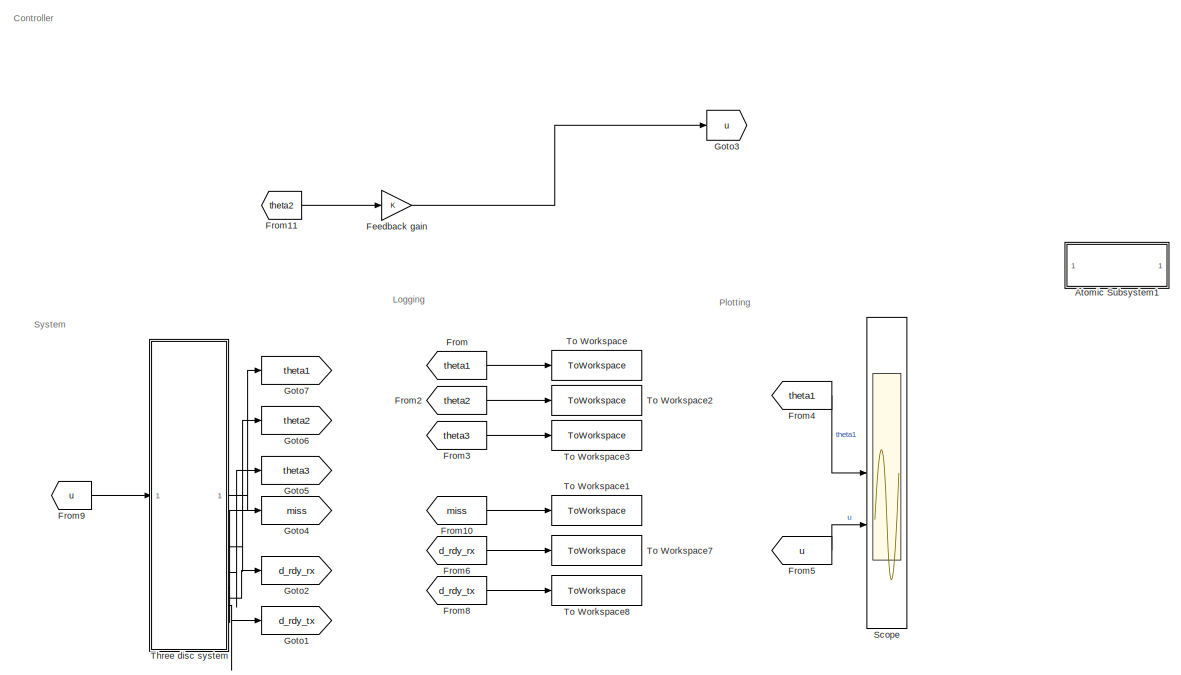
[diagram: root canvas - part 1/2, right side, full height]
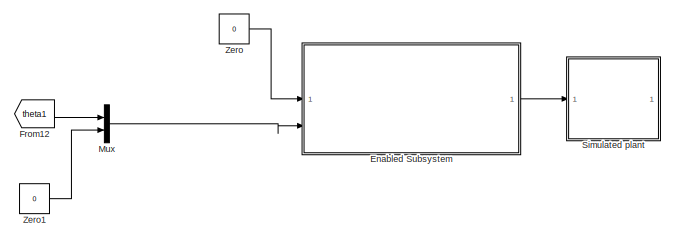
[diagram: root canvas - part 2/2, middle left region]
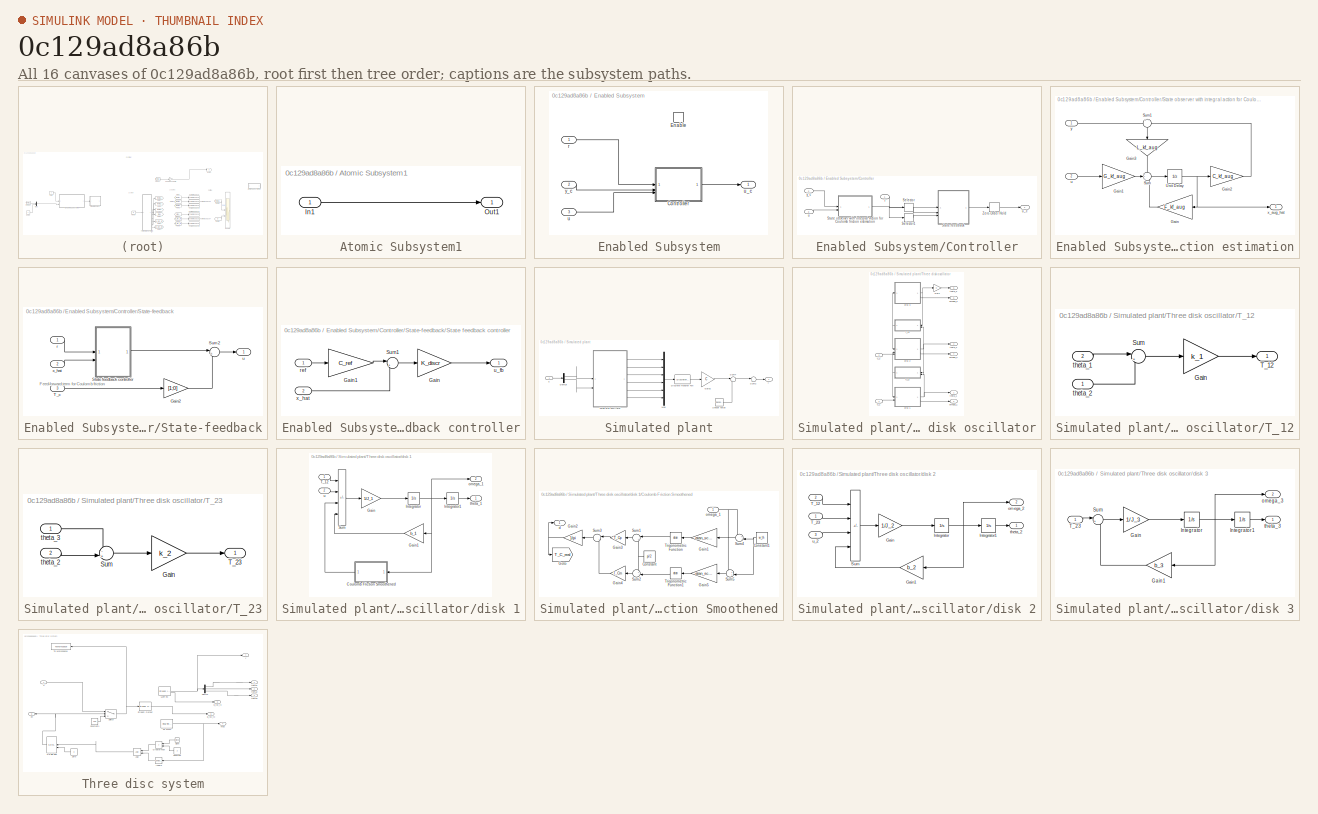
[diagram: thumbnail index - all 16 canvases of the model, root first then tree order]
MODEL slx_0c129ad8a86b
KIND model
CONFIG AbsTol = auto
CONFIG EnableMultiTasking = off
CONFIG FixedStep = 0.001
CONFIG MaxStep = auto
CONFIG MinStep = auto
CONFIG RelTol = 1e-3
CONFIG SampleTimeConstraint = Unconstrained
CONFIG SolverName = VariableStepAuto
CONFIG StartTime = 0.0
CONFIG StopTime = 5
BLOCK [SubSystem] Atomic Subsystem1
  TreatAsAtomicUnit = on
BLOCK [Inport] Atomic Subsystem1/In1
BLOCK [Outport] Atomic Subsystem1/Out1
BLOCK [SubSystem] Enabled Subsystem
  Commented = on
  TreatAsAtomicUnit = on
BLOCK [SubSystem] Enabled Subsystem/Controller
BLOCK [Selector] Enabled Subsystem/Controller/Selector
  IndexOptions = Index vector (dialog)
  Indices = [1:6]
  InputPortWidth = 7
  OutputSizes = 1
BLOCK [Selector] Enabled Subsystem/Controller/Selector1
  IndexOptions = Index vector (dialog)
  Indices = [7]
  InputPortWidth = 7
  OutputSizes = 1
BLOCK [SubSystem] Enabled Subsystem/Controller/State observer with integral action for Coulomb friction estimation
BLOCK [Gain] Enabled Subsystem/Controller/State observer with integral action for Coulomb friction estimation/Gain
  Gain = F_kf_aug
  Multiplication = Matrix(K*u) (u vector)
BLOCK [Gain] Enabled Subsystem/Controller/State observer with integral action for Coulomb friction estimation/Gain1
  Gain = G_kf_aug
  Multiplication = Matrix(K*u) (u vector)
BLOCK [Gain] Enabled Subsystem/Controller/State observer with integral action for Coulomb friction estimation/Gain2
  Gain = C_kf_aug
  Multiplication = Matrix(K*u) (u vector)
BLOCK [Gain] Enabled Subsystem/Controller/State observer with integral action for Coulomb friction estimation/Gain3
  Gain = L_kf_aug
  Multiplication = Matrix(K*u) (u vector)
  NameLocation = left
BLOCK [Sum] Enabled Subsystem/Controller/State observer with integral action for Coulomb friction estimation/Sum
  Inputs = +++
BLOCK [Sum] Enabled Subsystem/Controller/State observer with integral action for Coulomb friction estimation/Sum1
  Inputs = +-
  NameLocation = left
BLOCK [UnitDelay] Enabled Subsystem/Controller/State observer with integral action for Coulomb friction estimation/Unit Delay
  HasFrameUpgradeWarning = on
  SampleTime = T_s
BLOCK [Inport] Enabled Subsystem/Controller/State observer with integral action for Coulomb friction estimation/u
  Port = 2
BLOCK [Outport] Enabled Subsystem/Controller/State observer with integral action for Coulomb friction estimation/x_aug_hat
  VectorParamsAs1DForOutWhenUnconnected = off
BLOCK [Inport] Enabled Subsystem/Controller/State observer with integral action for Coulomb friction estimation/y
BLOCK [SubSystem] Enabled Subsystem/Controller/State-feedback
BLOCK [Gain] Enabled Subsystem/Controller/State-feedback/Gain2
  Gain = [1;0]
  NameLocation = top
BLOCK [SubSystem] Enabled Subsystem/Controller/State-feedback/State feedback controller
BLOCK [Gain] Enabled Subsystem/Controller/State-feedback/State feedback controller/Gain
  Gain = K_discr
  Multiplication = Matrix(K*u) (u vector)
  NameLocation = top
BLOCK [Gain] Enabled Subsystem/Controller/State-feedback/State feedback controller/Gain1
  Gain = C_ref
  Multiplication = Matrix(K*u) (u vector)
BLOCK [Sum] Enabled Subsystem/Controller/State-feedback/State feedback controller/Sum1
  Inputs = |+-
BLOCK [Inport] Enabled Subsystem/Controller/State-feedback/State feedback controller/ref
BLOCK [Outport] Enabled Subsystem/Controller/State-feedback/State feedback controller/u_fb
BLOCK [Inport] Enabled Subsystem/Controller/State-feedback/State feedback controller/x_hat
  Port = 2
BLOCK [Sum] Enabled Subsystem/Controller/State-feedback/Sum2
  Inputs = |+-
BLOCK [Inport] Enabled Subsystem/Controller/State-feedback/T_c
  Port = 3
BLOCK [Inport] Enabled Subsystem/Controller/State-feedback/r
BLOCK [Outport] Enabled Subsystem/Controller/State-feedback/u
  VectorParamsAs1DForOutWhenUnconnected = off
BLOCK [Inport] Enabled Subsystem/Controller/State-feedback/x_hat
  Port = 2
BLOCK [ZeroOrderHold] Enabled Subsystem/Controller/Zero-Order Hold
  SampleTime = T_s
BLOCK [Inport] Enabled Subsystem/Controller/r
BLOCK [Inport] Enabled Subsystem/Controller/u
  Port = 3
BLOCK [Outport] Enabled Subsystem/Controller/u_c
BLOCK [Inport] Enabled Subsystem/Controller/y_c
  Port = 2
BLOCK [EnablePort] Enabled Subsystem/Enable
BLOCK [Inport] Enabled Subsystem/r
BLOCK [Inport] Enabled Subsystem/u
  Port = 3
BLOCK [Outport] Enabled Subsystem/u_c
BLOCK [Inport] Enabled Subsystem/y_c
  Port = 2
BLOCK [Gain] Feedback gain
BLOCK [From] From
  GotoTag = theta1
BLOCK [From] From10
  GotoTag = miss
BLOCK [From] From11
  GotoTag = theta2
BLOCK [From] From12
  Commented = on
  GotoTag = theta1
BLOCK [From] From2
  GotoTag = theta2
BLOCK [From] From3
  GotoTag = theta3
BLOCK [From] From4
  GotoTag = theta1
BLOCK [From] From5
  GotoTag = u
BLOCK [From] From6
  GotoTag = d_rdy_rx
BLOCK [From] From8
  GotoTag = d_rdy_tx
BLOCK [From] From9
  GotoTag = u
BLOCK [Goto] Goto1
  GotoTag = d_rdy_tx
BLOCK [Goto] Goto2
  GotoTag = d_rdy_rx
BLOCK [Goto] Goto3
  GotoTag = u
BLOCK [Goto] Goto4
  GotoTag = miss
BLOCK [Goto] Goto5
  GotoTag = theta3
BLOCK [Goto] Goto6
  GotoTag = theta2
BLOCK [Goto] Goto7
  GotoTag = theta1
BLOCK [Mux] Mux
  Commented = on
  DisplayOption = bar
  Inputs = 2
BLOCK [Scope] Scope
  Commented = on
  Floating = off
  NumInputPorts = 2
  ScopeSpecificationString = Simulink.scopes.TimeScopeBlockCfg('CurrentConfiguration', extmgr.ConfigurationSet(extmgr.Configuration('Core','General UI',true),extmgr.Configuration('Core','Source UI',true),extmgr.Configuration('Sources','WiredSimulink',true,'SampleTime','0.04'),extmgr.Configuration('Visuals','Time Domain',true,'SerializedDisplays',{struct('MinYLimReal','2716.24453','MaxYLimReal','3335.70264','YLabelReal','','Mi...<+1499ch>
BLOCK [SubSystem] Simulated plant
  Commented = on
BLOCK [Demux] Simulated plant/Demux
  Outputs = 2
BLOCK [DiscreteTransferFcn] Simulated plant/Discrete Transfer Fcn
  Denominator = [1]
  InputPortMap = u0
  SampleTime = T_s
BLOCK [Gain] Simulated plant/Gain2
  Gain = C
  Multiplication = Matrix(K*u) (u vector)
BLOCK [Mux] Simulated plant/Mux
  DisplayOption = bar
  Inputs = 6
BLOCK [RandomNumber] Simulated plant/Sensor noise
  Mean = zeros(3,1)
  SampleTime = T_s
  Variance = diag(sigma_meas^2)
BLOCK [Sum] Simulated plant/Sum2
  Inputs = |++
BLOCK [Sum] Simulated plant/Sum4
  Inputs = |++
BLOCK [SubSystem] Simulated plant/Three disk oscillator
BLOCK [Gain] Simulated plant/Three disk oscillator/Gain
BLOCK [SubSystem] Simulated plant/Three disk oscillator/T_12
BLOCK [Gain] Simulated plant/Three disk oscillator/T_12/Gain
  Gain = k_1
BLOCK [Sum] Simulated plant/Three disk oscillator/T_12/Sum
  Inputs = |+-
BLOCK [Outport] Simulated plant/Three disk oscillator/T_12/T_12
  VectorParamsAs1DForOutWhenUnconnected = off
BLOCK [Inport] Simulated plant/Three disk oscillator/T_12/theta_1
  Port = 2
BLOCK [Inport] Simulated plant/Three disk oscillator/T_12/theta_2
BLOCK [SubSystem] Simulated plant/Three disk oscillator/T_23
BLOCK [Gain] Simulated plant/Three disk oscillator/T_23/Gain
  Gain = k_2
BLOCK [Sum] Simulated plant/Three disk oscillator/T_23/Sum
  Inputs = -+|
BLOCK [Outport] Simulated plant/Three disk oscillator/T_23/T_23
  VectorParamsAs1DForOutWhenUnconnected = off
BLOCK [Inport] Simulated plant/Three disk oscillator/T_23/theta_2
  Port = 2
BLOCK [Inport] Simulated plant/Three disk oscillator/T_23/theta_3
BLOCK [SubSystem] Simulated plant/Three disk oscillator/disk 1
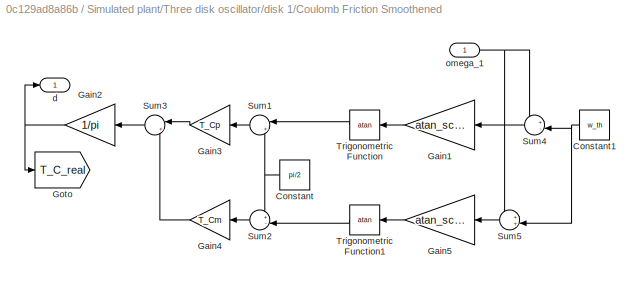
BLOCK [SubSystem] Simulated plant/Three disk oscillator/disk 1/Coulomb Friction Smoothened
BLOCK [Constant] Simulated plant/Three disk oscillator/disk 1/Coulomb Friction Smoothened/Constant
  Value = pi/2
BLOCK [Constant] Simulated plant/Three disk oscillator/disk 1/Coulomb Friction Smoothened/Constant1
  Value = w_th
BLOCK [Gain] Simulated plant/Three disk oscillator/disk 1/Coulomb Friction Smoothened/Gain1
  Gain = atan_scale
BLOCK [Gain] Simulated plant/Three disk oscillator/disk 1/Coulomb Friction Smoothened/Gain2
  Gain = 1/pi
BLOCK [Gain] Simulated plant/Three disk oscillator/disk 1/Coulomb Friction Smoothened/Gain3
  Gain = T_Cp
BLOCK [Gain] Simulated plant/Three disk oscillator/disk 1/Coulomb Friction Smoothened/Gain4
  Gain = T_Cm
BLOCK [Gain] Simulated plant/Three disk oscillator/disk 1/Coulomb Friction Smoothened/Gain5
  Gain = atan_scale
BLOCK [Goto] Simulated plant/Three disk oscillator/disk 1/Coulomb Friction Smoothened/Goto
  GotoTag = T_C_real
  TagVisibility = global
BLOCK [Sum] Simulated plant/Three disk oscillator/disk 1/Coulomb Friction Smoothened/Sum1
  Inputs = |++
BLOCK [Sum] Simulated plant/Three disk oscillator/disk 1/Coulomb Friction Smoothened/Sum2
  Inputs = +-|
BLOCK [Sum] Simulated plant/Three disk oscillator/disk 1/Coulomb Friction Smoothened/Sum3
  Inputs = |+-
BLOCK [Sum] Simulated plant/Three disk oscillator/disk 1/Coulomb Friction Smoothened/Sum4
  Inputs = +-|
BLOCK [Sum] Simulated plant/Three disk oscillator/disk 1/Coulomb Friction Smoothened/Sum5
  Inputs = ++|
BLOCK [Trigonometry] Simulated plant/Three disk oscillator/disk 1/Coulomb Friction Smoothened/Trigonometric Function
  Operator = atan
BLOCK [Trigonometry] Simulated plant/Three disk oscillator/disk 1/Coulomb Friction Smoothened/Trigonometric Function1
  Operator = atan
BLOCK [Outport] Simulated plant/Three disk oscillator/disk 1/Coulomb Friction Smoothened/d
  VectorParamsAs1DForOutWhenUnconnected = off
BLOCK [Inport] Simulated plant/Three disk oscillator/disk 1/Coulomb Friction Smoothened/omega_1
BLOCK [Gain] Simulated plant/Three disk oscillator/disk 1/Gain
  Gain = 1/J_1
BLOCK [Gain] Simulated plant/Three disk oscillator/disk 1/Gain1
  Gain = b_1
BLOCK [Integrator] Simulated plant/Three disk oscillator/disk 1/Integrator
  InitialCondition = x_0(2)
BLOCK [Integrator] Simulated plant/Three disk oscillator/disk 1/Integrator1
  InitialCondition = x_0(1)
BLOCK [Sum] Simulated plant/Three disk oscillator/disk 1/Sum
  IconShape = rectangular
  Inputs = -+--
BLOCK [Inport] Simulated plant/Three disk oscillator/disk 1/T_12
BLOCK [Outport] Simulated plant/Three disk oscillator/disk 1/omega_1
  Port = 2
  VectorParamsAs1DForOutWhenUnconnected = off
BLOCK [Outport] Simulated plant/Three disk oscillator/disk 1/theta_1
  VectorParamsAs1DForOutWhenUnconnected = off
BLOCK [Inport] Simulated plant/Three disk oscillator/disk 1/u
  Port = 2
BLOCK [SubSystem] Simulated plant/Three disk oscillator/disk 2
BLOCK [Gain] Simulated plant/Three disk oscillator/disk 2/Gain
  Gain = 1/J_2
BLOCK [Gain] Simulated plant/Three disk oscillator/disk 2/Gain1
  Gain = b_2
BLOCK [Integrator] Simulated plant/Three disk oscillator/disk 2/Integrator
  InitialCondition = x_0(4)
BLOCK [Integrator] Simulated plant/Three disk oscillator/disk 2/Integrator1
  InitialCondition = x_0(3)
BLOCK [Sum] Simulated plant/Three disk oscillator/disk 2/Sum
  IconShape = rectangular
  Inputs = +-+-
BLOCK [Inport] Simulated plant/Three disk oscillator/disk 2/T_12
  Port = 2
BLOCK [Inport] Simulated plant/Three disk oscillator/disk 2/T_23
BLOCK [Outport] Simulated plant/Three disk oscillator/disk 2/omega_2
  Port = 2
  VectorParamsAs1DForOutWhenUnconnected = off
BLOCK [Outport] Simulated plant/Three disk oscillator/disk 2/theta_2
  VectorParamsAs1DForOutWhenUnconnected = off
BLOCK [Inport] Simulated plant/Three disk oscillator/disk 2/u_2
  Port = 3
BLOCK [SubSystem] Simulated plant/Three disk oscillator/disk 3
BLOCK [Gain] Simulated plant/Three disk oscillator/disk 3/Gain
  Gain = 1/J_3
BLOCK [Gain] Simulated plant/Three disk oscillator/disk 3/Gain1
  Gain = b_3
BLOCK [Integrator] Simulated plant/Three disk oscillator/disk 3/Integrator
  InitialCondition = x_0(6)
BLOCK [Integrator] Simulated plant/Three disk oscillator/disk 3/Integrator1
  InitialCondition = x_0(5)
BLOCK [Sum] Simulated plant/Three disk oscillator/disk 3/Sum
  Inputs = |+-
BLOCK [Inport] Simulated plant/Three disk oscillator/disk 3/T_23
BLOCK [Outport] Simulated plant/Three disk oscillator/disk 3/omega_3
  Port = 2
  VectorParamsAs1DForOutWhenUnconnected = off
BLOCK [Outport] Simulated plant/Three disk oscillator/disk 3/theta_3
  VectorParamsAs1DForOutWhenUnconnected = off
BLOCK [Outport] Simulated plant/Three disk oscillator/omega_1
  Port = 2
  VectorParamsAs1DForOutWhenUnconnected = off
BLOCK [Outport] Simulated plant/Three disk oscillator/omega_2
  Port = 4
  VectorParamsAs1DForOutWhenUnconnected = off
BLOCK [Outport] Simulated plant/Three disk oscillator/omega_3
  Port = 6
  VectorParamsAs1DForOutWhenUnconnected = off
BLOCK [Outport] Simulated plant/Three disk oscillator/theta_1
  VectorParamsAs1DForOutWhenUnconnected = off
BLOCK [Outport] Simulated plant/Three disk oscillator/theta_2
  Port = 3
  VectorParamsAs1DForOutWhenUnconnected = off
BLOCK [Outport] Simulated plant/Three disk oscillator/theta_3
  Port = 5
  VectorParamsAs1DForOutWhenUnconnected = off
BLOCK [Inport] Simulated plant/Three disk oscillator/u_1
BLOCK [Inport] Simulated plant/Three disk oscillator/u_2
  Port = 2
BLOCK [Inport] Simulated plant/u
BLOCK [Outport] Simulated plant/y
  VectorParamsAs1DForOutWhenUnconnected = off
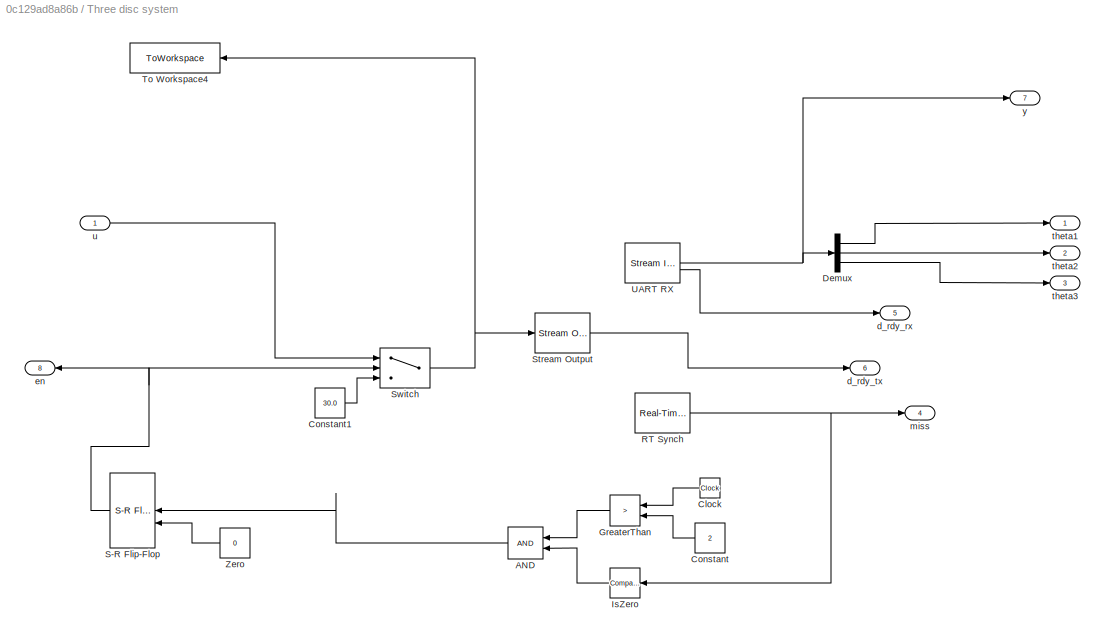
BLOCK [SubSystem] Three disc system
BLOCK [Logic] Three disc system/AND
  AllPortsSameDT = off
  IconShape = distinctive
  NameLocation = top
  OutDataTypeStr = boolean
BLOCK [Clock] Three disc system/Clock
  NameLocation = top
BLOCK [Constant] Three disc system/Constant
  NameLocation = top
  Value = 2
BLOCK [Constant] Three disc system/Constant1
  OutDataTypeStr = single
  Value = 30.0
BLOCK [Demux] Three disc system/Demux
  Outputs = 3
BLOCK [RelationalOperator] Three disc system/GreaterThan
  InputSameDT = off
  NameLocation = top
  Operator = >
  OutDataTypeStr = boolean
  RndMeth = Simplest
BLOCK [Reference] Three disc system/IsZero  REF=simulink/Logic and Bit
Operations/Compare
To Zero
  LibrarySourceBlock = simulink/Quick Insert/Logic and Bit\nOperations/IsZero
  NameLocation = top
  SourceBlock = simulink/Logic and Bit\nOperations/Compare\nTo Zero
  SourceType = Compare To Zero
BLOCK [Reference] Three disc system/RT Synch  REF=sldrtlib/Real-Time
Synchronization
  SourceBlock = sldrtlib/Real-Time\nSynchronization
  SourceType = Simulink Desktop Real-Time Synchronization
BLOCK [Reference] Three disc system/S-R Flip-Flop  REF=simulink_extras/Flip Flops/S-R
Flip-Flop
  NameLocation = top
  SourceBlock = simulink_extras/Flip Flops/S-R\nFlip-Flop
  SourceType = SRFlipFlop
BLOCK [Reference] Three disc system/Stream Output  REF=sldrtlib/Stream Output
  AttributesFormatString = Serial Port [8]
  SourceBlock = sldrtlib/Stream Output
  SourceType = Simulink Desktop Real-Time Stream Output
BLOCK [Switch] Three disc system/Switch
  Criteria = u2 > Threshold
  InputSameDT = off
  SaturateOnIntegerOverflow = off
BLOCK [ToWorkspace] Three disc system/To Workspace4
  FixptAsFi = on
  MaxDataPoints = inf
  NameLocation = top
  SampleTime = 1e-3
  VariableName = u_tx
BLOCK [Reference] Three disc system/UART RX  REF=sldrtlib/Stream Input
  AttributesFormatString = Serial Port [8]
  SourceBlock = sldrtlib/Stream Input
  SourceType = Simulink Desktop Real-Time Stream Input
BLOCK [Constant] Three disc system/Zero
  NameLocation = top
  OutDataTypeStr = Inherit: Inherit via back propagation
  Value = 0
BLOCK [Outport] Three disc system/d_rdy_rx
  Port = 5
BLOCK [Outport] Three disc system/d_rdy_tx
  Port = 6
BLOCK [Outport] Three disc system/en
  NameLocation = top
  Port = 8
BLOCK [Outport] Three disc system/miss
  Port = 4
BLOCK [Outport] Three disc system/theta1
BLOCK [Outport] Three disc system/theta2
  Port = 2
BLOCK [Outport] Three disc system/theta3
  Port = 3
BLOCK [Inport] Three disc system/u
BLOCK [Outport] Three disc system/y
  Port = 7
BLOCK [ToWorkspace] To Workspace
  FixptAsFi = on
  MaxDataPoints = inf
  SampleTime = 0.001
  VariableName = theta1
BLOCK [ToWorkspace] To Workspace1
  FixptAsFi = on
  MaxDataPoints = inf
  SampleTime = 0.001
  VariableName = miss
BLOCK [ToWorkspace] To Workspace2
  FixptAsFi = on
  MaxDataPoints = inf
  SampleTime = 0.001
  VariableName = theta2
BLOCK [ToWorkspace] To Workspace3
  FixptAsFi = on
  MaxDataPoints = inf
  SampleTime = 0.001
  VariableName = theta3
BLOCK [ToWorkspace] To Workspace7
  FixptAsFi = on
  MaxDataPoints = inf
  SampleTime = 0.001
  VariableName = d_rdy_rx
BLOCK [ToWorkspace] To Workspace8
  FixptAsFi = on
  MaxDataPoints = inf
  SampleTime = 0.001
  VariableName = d_rdy_tx
BLOCK [Constant] Zero
  Commented = on
  OutDataTypeStr = Inherit: Inherit via back propagation
  Value = 0
BLOCK [Constant] Zero1
  Commented = on
  OutDataTypeStr = Inherit: Inherit via back propagation
  Value = 0
ANNOTATION (root): Controller
ANNOTATION (root): Logging
ANNOTATION (root): Plotting
ANNOTATION (root): System
ANNOTATION Enabled Subsystem/Controller/State-feedback: Feed-forward term for Coulomb friction
LINE Atomic Subsystem1/In1:1 -> Atomic Subsystem1/Out1:1
LINE Enabled Subsystem/Controller/Selector1:1 -> Enabled Subsystem/Controller/State-feedback:3
LINE Enabled Subsystem/Controller/Selector:1 -> Enabled Subsystem/Controller/State-feedback:2
LINE Enabled Subsystem/Controller/State observer with integral action for Coulomb friction estimation/Gain1:1 -> Enabled Subsystem/Controller/State observer with integral action for Coulomb friction estimation/Sum:2
LINE Enabled Subsystem/Controller/State observer with integral action for Coulomb friction estimation/Gain2:1 -> Enabled Subsystem/Controller/State observer with integral action for Coulomb friction estimation/Sum1:2
LINE Enabled Subsystem/Controller/State observer with integral action for Coulomb friction estimation/Gain3:1 -> Enabled Subsystem/Controller/State observer with integral action for Coulomb friction estimation/Sum:1
LINE Enabled Subsystem/Controller/State observer with integral action for Coulomb friction estimation/Gain:1 -> Enabled Subsystem/Controller/State observer with integral action for Coulomb friction estimation/Sum:3
LINE Enabled Subsystem/Controller/State observer with integral action for Coulomb friction estimation/Sum1:1 -> Enabled Subsystem/Controller/State observer with integral action for Coulomb friction estimation/Gain3:1
LINE Enabled Subsystem/Controller/State observer with integral action for Coulomb friction estimation/Sum:1 -> Enabled Subsystem/Controller/State observer with integral action for Coulomb friction estimation/Unit Delay:1
NET Enabled Subsystem/Controller/State observer with integral action for Coulomb friction estimation/Unit Delay:1 -> Enabled Subsystem/Controller/State observer with integral action for Coulomb friction estimation/Gain2:1, Enabled Subsystem/Controller/State observer with integral action for Coulomb friction estimation/Gain:1, Enabled Subsystem/Controller/State observer with integral action for Coulomb friction estimation/x_aug_hat:1
LINE Enabled Subsystem/Controller/State observer with integral action for Coulomb friction estimation/u:1 -> Enabled Subsystem/Controller/State observer with integral action for Coulomb friction estimation/Gain1:1
LINE Enabled Subsystem/Controller/State observer with integral action for Coulomb friction estimation/y:1 -> Enabled Subsystem/Controller/State observer with integral action for Coulomb friction estimation/Sum1:1
NET Enabled Subsystem/Controller/State observer with integral action for Coulomb friction estimation:1 -> Enabled Subsystem/Controller/Selector1:1, Enabled Subsystem/Controller/Selector:1
LINE Enabled Subsystem/Controller/State-feedback/Gain2:1 -> Enabled Subsystem/Controller/State-feedback/Sum2:2
LINE Enabled Subsystem/Controller/State-feedback/State feedback controller/Gain1:1 -> Enabled Subsystem/Controller/State-feedback/State feedback controller/Sum1:1
LINE Enabled Subsystem/Controller/State-feedback/State feedback controller/Gain:1 -> Enabled Subsystem/Controller/State-feedback/State feedback controller/u_fb:1
LINE Enabled Subsystem/Controller/State-feedback/State feedback controller/Sum1:1 -> Enabled Subsystem/Controller/State-feedback/State feedback controller/Gain:1
LINE Enabled Subsystem/Controller/State-feedback/State feedback controller/ref:1 -> Enabled Subsystem/Controller/State-feedback/State feedback controller/Gain1:1
LINE Enabled Subsystem/Controller/State-feedback/State feedback controller/x_hat:1 -> Enabled Subsystem/Controller/State-feedback/State feedback controller/Sum1:2
LINE Enabled Subsystem/Controller/State-feedback/State feedback controller:1 -> Enabled Subsystem/Controller/State-feedback/Sum2:1
LINE Enabled Subsystem/Controller/State-feedback/Sum2:1 -> Enabled Subsystem/Controller/State-feedback/u:1
LINE Enabled Subsystem/Controller/State-feedback/T_c:1 -> Enabled Subsystem/Controller/State-feedback/Gain2:1
LINE Enabled Subsystem/Controller/State-feedback/r:1 -> Enabled Subsystem/Controller/State-feedback/State feedback controller:1
LINE Enabled Subsystem/Controller/State-feedback/x_hat:1 -> Enabled Subsystem/Controller/State-feedback/State feedback controller:2
LINE Enabled Subsystem/Controller/State-feedback:1 -> Enabled Subsystem/Controller/Zero-Order Hold:1
LINE Enabled Subsystem/Controller/Zero-Order Hold:1 -> Enabled Subsystem/Controller/u_c:1
LINE Enabled Subsystem/Controller/r:1 -> Enabled Subsystem/Controller/State-feedback:1
LINE Enabled Subsystem/Controller/u:1 -> Enabled Subsystem/Controller/State observer with integral action for Coulomb friction estimation:2
LINE Enabled Subsystem/Controller/y_c:1 -> Enabled Subsystem/Controller/State observer with integral action for Coulomb friction estimation:1
LINE Enabled Subsystem/Controller:1 -> Enabled Subsystem/u_c:1
LINE Enabled Subsystem/r:1 -> Enabled Subsystem/Controller:1
LINE Enabled Subsystem/u:1 -> Enabled Subsystem/Controller:3
LINE Enabled Subsystem/y_c:1 -> Enabled Subsystem/Controller:2
LINE Enabled Subsystem:1 -> Simulated plant:1
LINE Feedback gain:1 -> Goto3:1
LINE From10:1 -> To Workspace1:1
LINE From11:1 -> Feedback gain:1
LINE From12:1 -> Mux:1
LINE From2:1 -> To Workspace2:1
LINE From3:1 -> To Workspace3:1
LINE From4:1 -> Scope:1
LINE From5:1 -> Scope:2
LINE From6:1 -> To Workspace7:1
LINE From8:1 -> To Workspace8:1
LINE From9:1 -> Three disc system:1
LINE From:1 -> To Workspace:1
LINE Mux:1 -> Enabled Subsystem:3
LINE Simulated plant/Demux:1 -> Simulated plant/Three disk oscillator:1
LINE Simulated plant/Demux:2 -> Simulated plant/Three disk oscillator:2
LINE Simulated plant/Discrete Transfer Fcn:1 -> Simulated plant/Gain2:1
LINE Simulated plant/Gain2:1 -> Simulated plant/Sum4:1
LINE Simulated plant/Mux:1 -> Simulated plant/Discrete Transfer Fcn:1
LINE Simulated plant/Sensor noise:1 -> Simulated plant/Sum4:2
LINE Simulated plant/Sum2:1 -> Simulated plant/y:1
LINE Simulated plant/Sum4:1 -> Simulated plant/Sum2:1
LINE Simulated plant/Three disk oscillator/Gain:1 -> Simulated plant/Three disk oscillator/theta_3:1
LINE Simulated plant/Three disk oscillator/T_12/Gain:1 -> Simulated plant/Three disk oscillator/T_12/T_12:1
LINE Simulated plant/Three disk oscillator/T_12/Sum:1 -> Simulated plant/Three disk oscillator/T_12/Gain:1
LINE Simulated plant/Three disk oscillator/T_12/theta_1:1 -> Simulated plant/Three disk oscillator/T_12/Sum:1
LINE Simulated plant/Three disk oscillator/T_12/theta_2:1 -> Simulated plant/Three disk oscillator/T_12/Sum:2
NET Simulated plant/Three disk oscillator/T_12:1 -> Simulated plant/Three disk oscillator/disk 1:1, Simulated plant/Three disk oscillator/disk 2:2
LINE Simulated plant/Three disk oscillator/T_23/Gain:1 -> Simulated plant/Three disk oscillator/T_23/T_23:1
LINE Simulated plant/Three disk oscillator/T_23/Sum:1 -> Simulated plant/Three disk oscillator/T_23/Gain:1
LINE Simulated plant/Three disk oscillator/T_23/theta_2:1 -> Simulated plant/Three disk oscillator/T_23/Sum:2
LINE Simulated plant/Three disk oscillator/T_23/theta_3:1 -> Simulated plant/Three disk oscillator/T_23/Sum:1
NET Simulated plant/Three disk oscillator/T_23:1 -> Simulated plant/Three disk oscillator/disk 2:1, Simulated plant/Three disk oscillator/disk 3:1
NET Simulated plant/Three disk oscillator/disk 1/Coulomb Friction Smoothened/Constant1:1 -> Simulated plant/Three disk oscillator/disk 1/Coulomb Friction Smoothened/Sum4:2, Simulated plant/Three disk oscillator/disk 1/Coulomb Friction Smoothened/Sum5:2
NET Simulated plant/Three disk oscillator/disk 1/Coulomb Friction Smoothened/Constant:1 -> Simulated plant/Three disk oscillator/disk 1/Coulomb Friction Smoothened/Sum1:2, Simulated plant/Three disk oscillator/disk 1/Coulomb Friction Smoothened/Sum2:1
LINE Simulated plant/Three disk oscillator/disk 1/Coulomb Friction Smoothened/Gain1:1 -> Simulated plant/Three disk oscillator/disk 1/Coulomb Friction Smoothened/Trigonometric Function:1
NET Simulated plant/Three disk oscillator/disk 1/Coulomb Friction Smoothened/Gain2:1 -> Simulated plant/Three disk oscillator/disk 1/Coulomb Friction Smoothened/Goto:1, Simulated plant/Three disk oscillator/disk 1/Coulomb Friction Smoothened/d:1
LINE Simulated plant/Three disk oscillator/disk 1/Coulomb Friction Smoothened/Gain3:1 -> Simulated plant/Three disk oscillator/disk 1/Coulomb Friction Smoothened/Sum3:1
LINE Simulated plant/Three disk oscillator/disk 1/Coulomb Friction Smoothened/Gain4:1 -> Simulated plant/Three disk oscillator/disk 1/Coulomb Friction Smoothened/Sum3:2
LINE Simulated plant/Three disk oscillator/disk 1/Coulomb Friction Smoothened/Gain5:1 -> Simulated plant/Three disk oscillator/disk 1/Coulomb Friction Smoothened/Trigonometric Function1:1
LINE Simulated plant/Three disk oscillator/disk 1/Coulomb Friction Smoothened/Sum1:1 -> Simulated plant/Three disk oscillator/disk 1/Coulomb Friction Smoothened/Gain3:1
LINE Simulated plant/Three disk oscillator/disk 1/Coulomb Friction Smoothened/Sum2:1 -> Simulated plant/Three disk oscillator/disk 1/Coulomb Friction Smoothened/Gain4:1
LINE Simulated plant/Three disk oscillator/disk 1/Coulomb Friction Smoothened/Sum3:1 -> Simulated plant/Three disk oscillator/disk 1/Coulomb Friction Smoothened/Gain2:1
LINE Simulated plant/Three disk oscillator/disk 1/Coulomb Friction Smoothened/Sum4:1 -> Simulated plant/Three disk oscillator/disk 1/Coulomb Friction Smoothened/Gain1:1
LINE Simulated plant/Three disk oscillator/disk 1/Coulomb Friction Smoothened/Sum5:1 -> Simulated plant/Three disk oscillator/disk 1/Coulomb Friction Smoothened/Gain5:1
LINE Simulated plant/Three disk oscillator/disk 1/Coulomb Friction Smoothened/Trigonometric Function1:1 -> Simulated plant/Three disk oscillator/disk 1/Coulomb Friction Smoothened/Sum2:2
LINE Simulated plant/Three disk oscillator/disk 1/Coulomb Friction Smoothened/Trigonometric Function:1 -> Simulated plant/Three disk oscillator/disk 1/Coulomb Friction Smoothened/Sum1:1
NET Simulated plant/Three disk oscillator/disk 1/Coulomb Friction Smoothened/omega_1:1 -> Simulated plant/Three disk oscillator/disk 1/Coulomb Friction Smoothened/Sum4:1, Simulated plant/Three disk oscillator/disk 1/Coulomb Friction Smoothened/Sum5:1
LINE Simulated plant/Three disk oscillator/disk 1/Coulomb Friction Smoothened:1 -> Simulated plant/Three disk oscillator/disk 1/Sum:3
LINE Simulated plant/Three disk oscillator/disk 1/Gain1:1 -> Simulated plant/Three disk oscillator/disk 1/Sum:4
LINE Simulated plant/Three disk oscillator/disk 1/Gain:1 -> Simulated plant/Three disk oscillator/disk 1/Integrator:1
LINE Simulated plant/Three disk oscillator/disk 1/Integrator1:1 -> Simulated plant/Three disk oscillator/disk 1/theta_1:1
NET Simulated plant/Three disk oscillator/disk 1/Integrator:1 -> Simulated plant/Three disk oscillator/disk 1/Coulomb Friction Smoothened:1, Simulated plant/Three disk oscillator/disk 1/Gain1:1, Simulated plant/Three disk oscillator/disk 1/Integrator1:1, Simulated plant/Three disk oscillator/disk 1/omega_1:1
LINE Simulated plant/Three disk oscillator/disk 1/Sum:1 -> Simulated plant/Three disk oscillator/disk 1/Gain:1
LINE Simulated plant/Three disk oscillator/disk 1/T_12:1 -> Simulated plant/Three disk oscillator/disk 1/Sum:1
LINE Simulated plant/Three disk oscillator/disk 1/u:1 -> Simulated plant/Three disk oscillator/disk 1/Sum:2
NET Simulated plant/Three disk oscillator/disk 1:1 -> Simulated plant/Three disk oscillator/T_12:2, Simulated plant/Three disk oscillator/theta_1:1
LINE Simulated plant/Three disk oscillator/disk 1:2 -> Simulated plant/Three disk oscillator/omega_1:1
LINE Simulated plant/Three disk oscillator/disk 2/Gain1:1 -> Simulated plant/Three disk oscillator/disk 2/Sum:4
LINE Simulated plant/Three disk oscillator/disk 2/Gain:1 -> Simulated plant/Three disk oscillator/disk 2/Integrator:1
LINE Simulated plant/Three disk oscillator/disk 2/Integrator1:1 -> Simulated plant/Three disk oscillator/disk 2/theta_2:1
NET Simulated plant/Three disk oscillator/disk 2/Integrator:1 -> Simulated plant/Three disk oscillator/disk 2/Gain1:1, Simulated plant/Three disk oscillator/disk 2/Integrator1:1, Simulated plant/Three disk oscillator/disk 2/omega_2:1
LINE Simulated plant/Three disk oscillator/disk 2/Sum:1 -> Simulated plant/Three disk oscillator/disk 2/Gain:1
LINE Simulated plant/Three disk oscillator/disk 2/T_12:1 -> Simulated plant/Three disk oscillator/disk 2/Sum:1
LINE Simulated plant/Three disk oscillator/disk 2/T_23:1 -> Simulated plant/Three disk oscillator/disk 2/Sum:2
LINE Simulated plant/Three disk oscillator/disk 2/u_2:1 -> Simulated plant/Three disk oscillator/disk 2/Sum:3
NET Simulated plant/Three disk oscillator/disk 2:1 -> Simulated plant/Three disk oscillator/T_12:1, Simulated plant/Three disk oscillator/T_23:2, Simulated plant/Three disk oscillator/theta_2:1
LINE Simulated plant/Three disk oscillator/disk 2:2 -> Simulated plant/Three disk oscillator/omega_2:1
LINE Simulated plant/Three disk oscillator/disk 3/Gain1:1 -> Simulated plant/Three disk oscillator/disk 3/Sum:2
LINE Simulated plant/Three disk oscillator/disk 3/Gain:1 -> Simulated plant/Three disk oscillator/disk 3/Integrator:1
LINE Simulated plant/Three disk oscillator/disk 3/Integrator1:1 -> Simulated plant/Three disk oscillator/disk 3/theta_3:1
NET Simulated plant/Three disk oscillator/disk 3/Integrator:1 -> Simulated plant/Three disk oscillator/disk 3/Gain1:1, Simulated plant/Three disk oscillator/disk 3/Integrator1:1, Simulated plant/Three disk oscillator/disk 3/omega_3:1
LINE Simulated plant/Three disk oscillator/disk 3/Sum:1 -> Simulated plant/Three disk oscillator/disk 3/Gain:1
LINE Simulated plant/Three disk oscillator/disk 3/T_23:1 -> Simulated plant/Three disk oscillator/disk 3/Sum:1
NET Simulated plant/Three disk oscillator/disk 3:1 -> Simulated plant/Three disk oscillator/Gain:1, Simulated plant/Three disk oscillator/T_23:1
LINE Simulated plant/Three disk oscillator/disk 3:2 -> Simulated plant/Three disk oscillator/omega_3:1
LINE Simulated plant/Three disk oscillator/u_1:1 -> Simulated plant/Three disk oscillator/disk 1:2
LINE Simulated plant/Three disk oscillator/u_2:1 -> Simulated plant/Three disk oscillator/disk 2:3
LINE Simulated plant/Three disk oscillator:1 -> Simulated plant/Mux:1
LINE Simulated plant/Three disk oscillator:2 -> Simulated plant/Mux:2
LINE Simulated plant/Three disk oscillator:3 -> Simulated plant/Mux:3
LINE Simulated plant/Three disk oscillator:4 -> Simulated plant/Mux:4
LINE Simulated plant/Three disk oscillator:5 -> Simulated plant/Mux:5
LINE Simulated plant/Three disk oscillator:6 -> Simulated plant/Mux:6
LINE Simulated plant/u:1 -> Simulated plant/Demux:1
LINE Three disc system/AND:1 -> Three disc system/S-R Flip-Flop:1
LINE Three disc system/Clock:1 -> Three disc system/GreaterThan:1
LINE Three disc system/Constant1:1 -> Three disc system/Switch:3
LINE Three disc system/Constant:1 -> Three disc system/GreaterThan:2
LINE Three disc system/Demux:1 -> Three disc system/theta1:1
LINE Three disc system/Demux:2 -> Three disc system/theta2:1
LINE Three disc system/Demux:3 -> Three disc system/theta3:1
LINE Three disc system/GreaterThan:1 -> Three disc system/AND:1
LINE Three disc system/IsZero:1 -> Three disc system/AND:2
NET Three disc system/RT Synch:1 -> Three disc system/IsZero:1, Three disc system/miss:1
NET Three disc system/S-R Flip-Flop:1 -> Three disc system/Switch:2, Three disc system/en:1
LINE Three disc system/Stream Output:1 -> Three disc system/d_rdy_tx:1
NET Three disc system/Switch:1 -> Three disc system/Stream Output:1, Three disc system/To Workspace4:1
NET Three disc system/UART RX:1 -> Three disc system/Demux:1, Three disc system/y:1
LINE Three disc system/UART RX:2 -> Three disc system/d_rdy_rx:1
LINE Three disc system/Zero:1 -> Three disc system/S-R Flip-Flop:2
LINE Three disc system/u:1 -> Three disc system/Switch:1
LINE Three disc system:1 -> Goto7:1
LINE Three disc system:2 -> Goto6:1
LINE Three disc system:3 -> Goto5:1
LINE Three disc system:4 -> Goto4:1
LINE Three disc system:5 -> Goto2:1
LINE Three disc system:6 -> Goto1:1
LINE Zero1:1 -> Mux:2
LINE Zero:1 -> Enabled Subsystem:1
note: NET lines group one-source signal fan-out (src -> all destinations, sorted); 1:1 wires keep LINE
